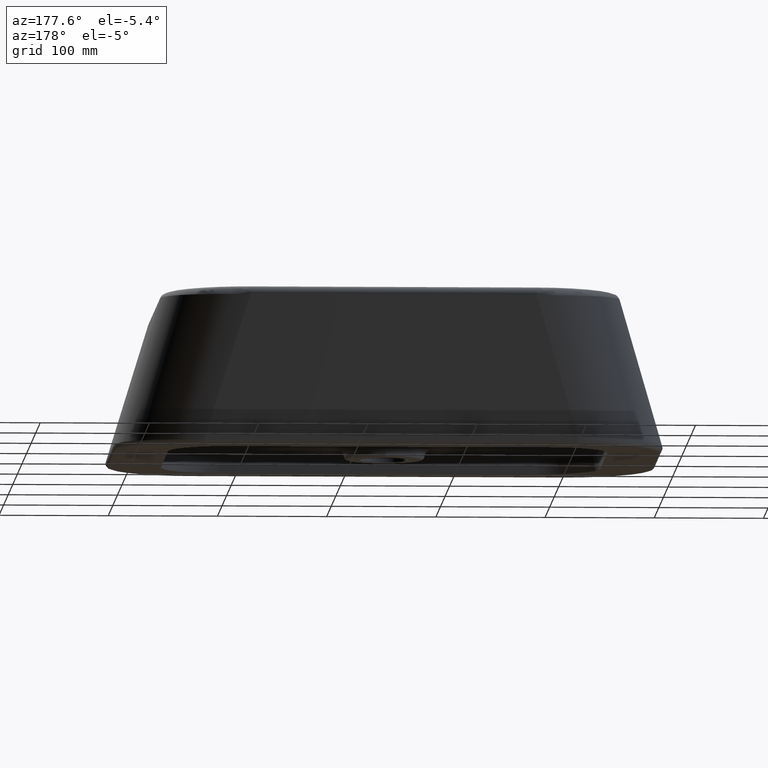
[diagram: clean part render]
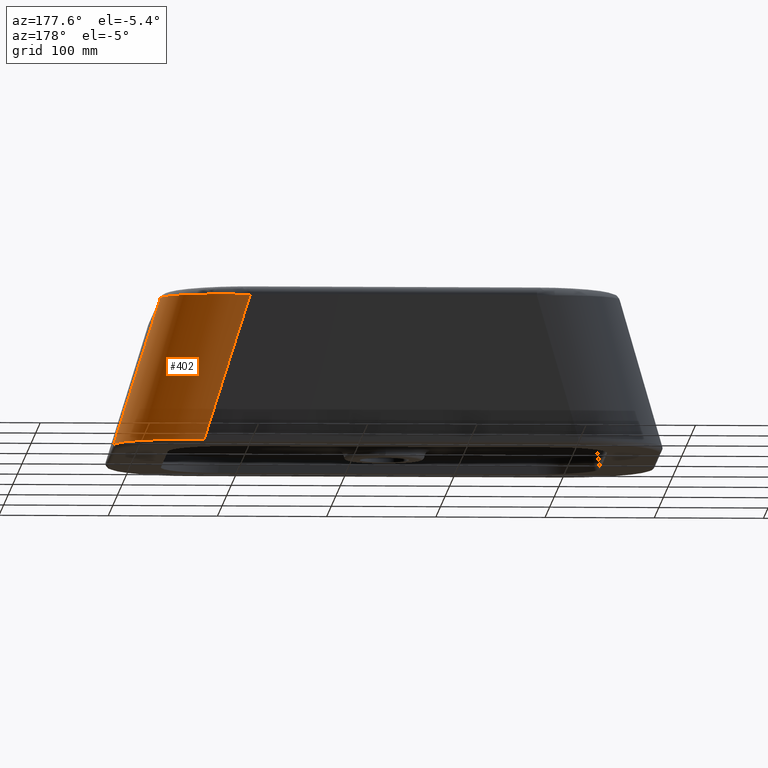
[diagram: same view with one face highlighted and labeled with its STEP entity id]
A machine part, auxiliary view. The second image highlights one B-rep face of the part: STEP entity #402.
In plain terms, the highlighted cylindrical surface (partial cylindrical patch) has radius 70 mm, axis along (-0.2842, 0.3069, 0.9083).
Its self-contained STEP definition (entity closure, byte-faithful):
#176=CYLINDRICAL_SURFACE('',#1281,70.);
#213=FACE_OUTER_BOUND('',#505,.T.);
#292=ELLIPSE('',#1279,76.3138108854789,70.);
#293=ELLIPSE('',#1280,75.9516839158323,70.);
#320=LINE('',#2672,#360);
#326=LINE('',#2686,#366);
#360=VECTOR('',#1412,1.);
#366=VECTOR('',#1420,1.);
#402=ADVANCED_FACE('',(#213),#176,.T.);
#505=EDGE_LOOP('',(#700,#701,#702,#703));
#700=ORIENTED_EDGE('',*,*,#1075,.F.);
#701=ORIENTED_EDGE('',*,*,#1114,.T.);
#702=ORIENTED_EDGE('',*,*,#1069,.F.);
#703=ORIENTED_EDGE('',*,*,#1115,.T.);
#959=VERTEX_POINT('',#2673);
#960=VERTEX_POINT('',#2674);
#965=VERTEX_POINT('',#2685);
#966=VERTEX_POINT('',#2687);
#1069=EDGE_CURVE('',#959,#960,#320,.T.);
#1075=EDGE_CURVE('',#965,#966,#326,.T.);
#1114=EDGE_CURVE('',#965,#960,#292,.T.);
#1115=EDGE_CURVE('',#959,#966,#293,.T.);
#1279=AXIS2_PLACEMENT_3D('',#3302,#1452,#1453);
#1280=AXIS2_PLACEMENT_3D('',#3303,#1454,#1455);
#1281=AXIS2_PLACEMENT_3D('',#3304,#1456,#1457);
#1412=DIRECTION('',(0.306915325009861,-0.284203057103863,0.90831250437661));
#1420=DIRECTION('',(-0.306915325009861,0.284203057103863,-0.90831250437661));
#1452=DIRECTION('',(-0.0160870134225345,0.0148965464471619,-0.999759621560648));
#1453=DIRECTION('',(-0.733557840768233,0.679273284584738,0.0219248511262735));
#1454=DIRECTION('',(0.0242455710672576,-0.0224513566350009,0.999453895319274));
#1455=DIRECTION('',(-0.733333518964619,0.679065562984782,0.0330440786091765));
#1456=DIRECTION('',(-0.306915325009861,0.284203057103863,-0.90831250437661));
#1457=DIRECTION('',(-0.947378498079437,0.,0.320115575029941));
#2672=CARTESIAN_POINT('',(23.1306178423995,-972.558304957833,-14.3241338361648));
#2673=CARTESIAN_POINT('',(60.7839896245831,-1007.42526173303,97.1106028313505));
#2674=CARTESIAN_POINT('',(104.494161298404,-1047.90080467256,226.470371681291));
#2685=CARTESIAN_POINT('',(184.609062066346,-1127.48425689314,223.995448686736));
#2686=CARTESIAN_POINT('',(171.508656158223,-1115.35330380935,185.224942527178));
#2687=CARTESIAN_POINT('',(140.480756880331,-1086.62152304863,93.3982183395176));
#3302=CARTESIAN_POINT('',(177.949600930577,-1054.5114551088,225.189909381171));
#3303=CARTESIAN_POINT('',(134.023097597162,-1013.83558942879,95.1899093811709));
#3304=CARTESIAN_POINT('',(171.508656158223,-1048.54715145312,206.128004679798));